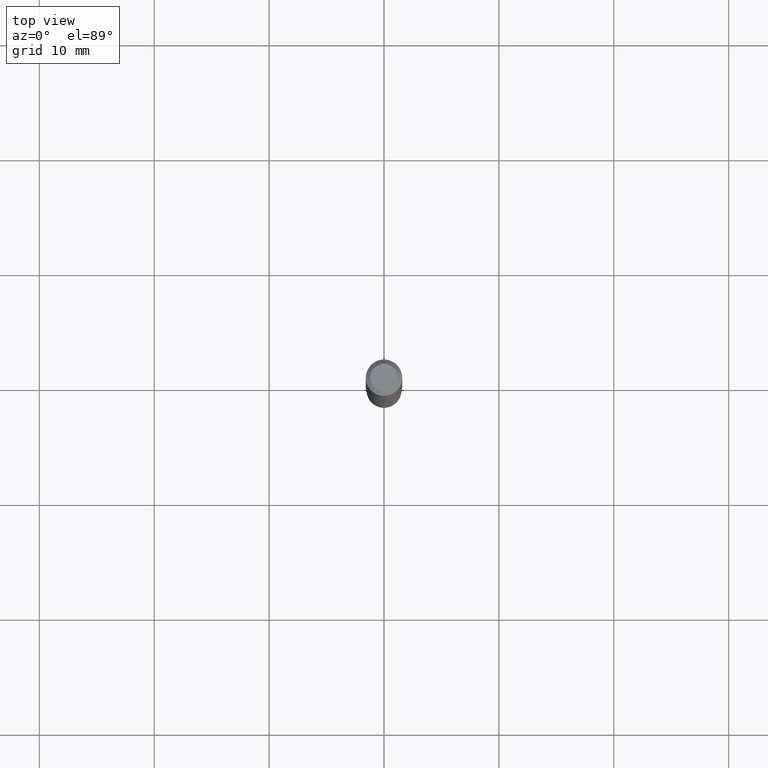
[diagram: clean part render]
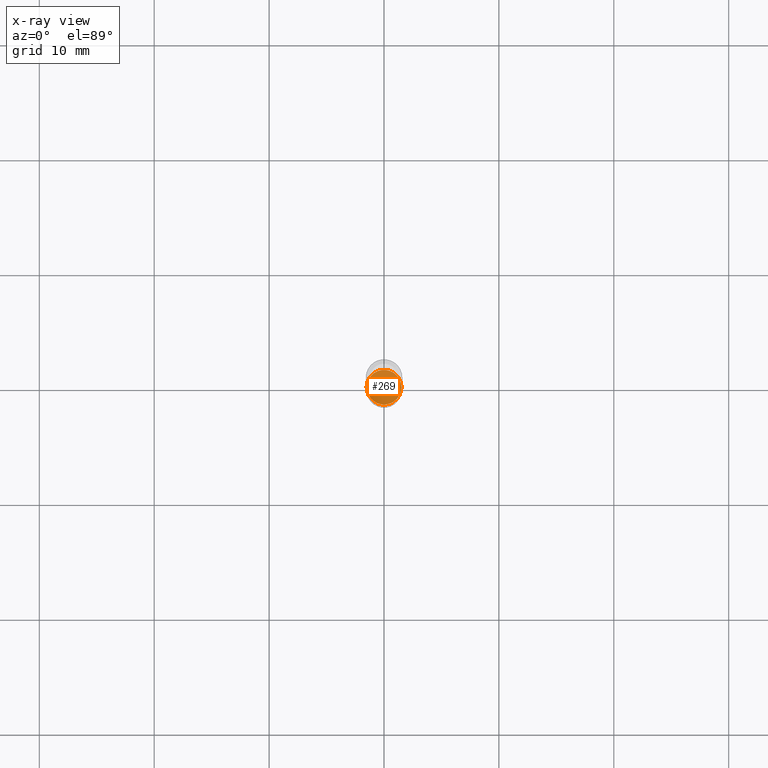
[diagram: x-ray — body ghosted, one internal face saturated and labeled with its STEP entity id]
A machine part, top view, then the same camera in x-ray: the body is ghosted and one INTERNAL B-rep face — a face not visible from any outside direction — is saturated and labeled: STEP entity #269.
In plain terms, the highlighted planar face has unit normal (-0, 0, 1).
Its self-contained STEP definition (entity closure, byte-faithful):
#11 = CARTESIAN_POINT ( 'NONE',  ( 4.646390731751761103E-29, -6.633814543801978619E-15, -1.900000000000000577 ) ) ;
#81 = PLANE ( 'NONE',  #195 ) ;
#86 = CARTESIAN_POINT ( 'NONE',  ( 4.646390731751761103E-29, -6.633814543801978619E-15, -1.900000000000000577 ) ) ;
#120 = DIRECTION ( 'NONE',  ( -2.438088387897960049E-29, 3.491481338843145188E-15, 1.000000000000000000 ) ) ;
#127 = CARTESIAN_POINT ( 'NONE',  ( 4.646390731751761103E-29, -6.633814543801978619E-15, -1.900000000000000577 ) ) ;
#146 = VERTEX_POINT ( 'NONE', #267 ) ;
#161 = DIRECTION ( 'NONE',  ( 1.000000000000000000, -6.982962677686265922E-15, 4.876176775795935793E-29 ) ) ;
#167 = AXIS2_PLACEMENT_3D ( 'NONE', #86, #204, #233 ) ;
#195 = AXIS2_PLACEMENT_3D ( 'NONE', #11, #120, #161 ) ;
#204 = DIRECTION ( 'NONE',  ( -2.445468806185136597E-29, 3.491481338843145583E-15, 1.000000000000000000 ) ) ;
#210 = EDGE_LOOP ( 'NONE', ( #235, #244 ) ) ;
#233 = DIRECTION ( 'NONE',  ( 1.000000000000000000, -6.982962677686259611E-15, 0.000000000000000000 ) ) ;
#235 = ORIENTED_EDGE ( 'NONE', *, *, #370, .F. ) ;
#244 = ORIENTED_EDGE ( 'NONE', *, *, #444, .F. ) ;
#267 = CARTESIAN_POINT ( 'NONE',  ( 0.05949999999999999734, -7.049300823124310667E-15, -1.900000000000000577 ) ) ;
#269 = ADVANCED_FACE ( 'NONE', ( #303 ), #81, .F. ) ;
#271 = DIRECTION ( 'NONE',  ( -2.445468806185136597E-29, 3.491481338843145583E-15, 1.000000000000000000 ) ) ;
#292 = AXIS2_PLACEMENT_3D ( 'NONE', #127, #271, #412 ) ;
#303 = FACE_OUTER_BOUND ( 'NONE', #210, .T. ) ;
#324 = CIRCLE ( 'NONE', #292, 0.05949999999999999734 ) ;
#362 = VERTEX_POINT ( 'NONE', #386 ) ;
#370 = EDGE_CURVE ( 'NONE', #146, #362, #418, .T. ) ;
#386 = CARTESIAN_POINT ( 'NONE',  ( -0.05949999999999999734, -6.208392388850606248E-15, -1.900000000000000577 ) ) ;
#412 = DIRECTION ( 'NONE',  ( 1.000000000000000000, -6.982962677686259611E-15, 0.000000000000000000 ) ) ;
#418 = CIRCLE ( 'NONE', #167, 0.05949999999999999734 ) ;
#444 = EDGE_CURVE ( 'NONE', #362, #146, #324, .T. ) ;